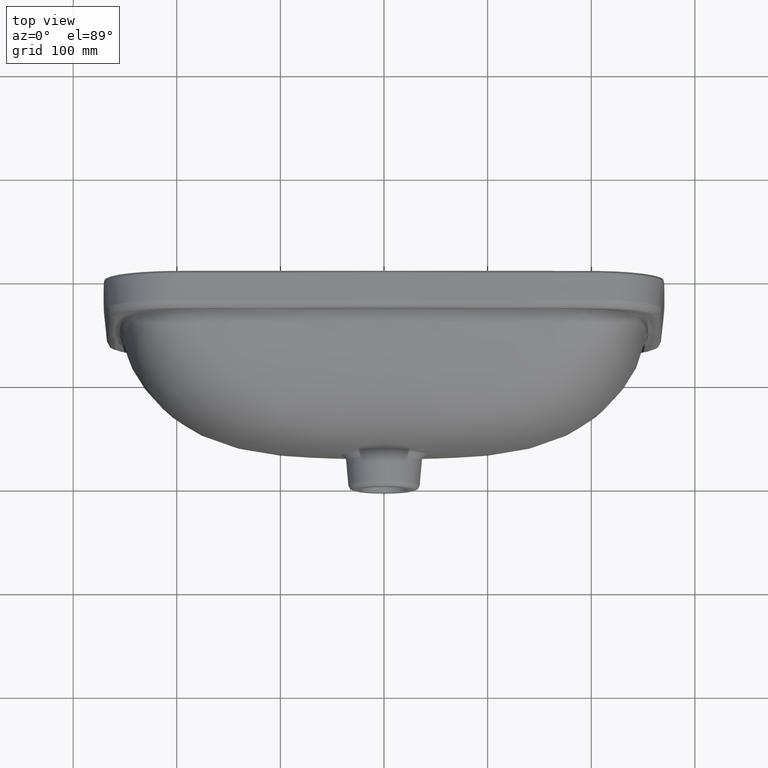
[diagram: clean part render]
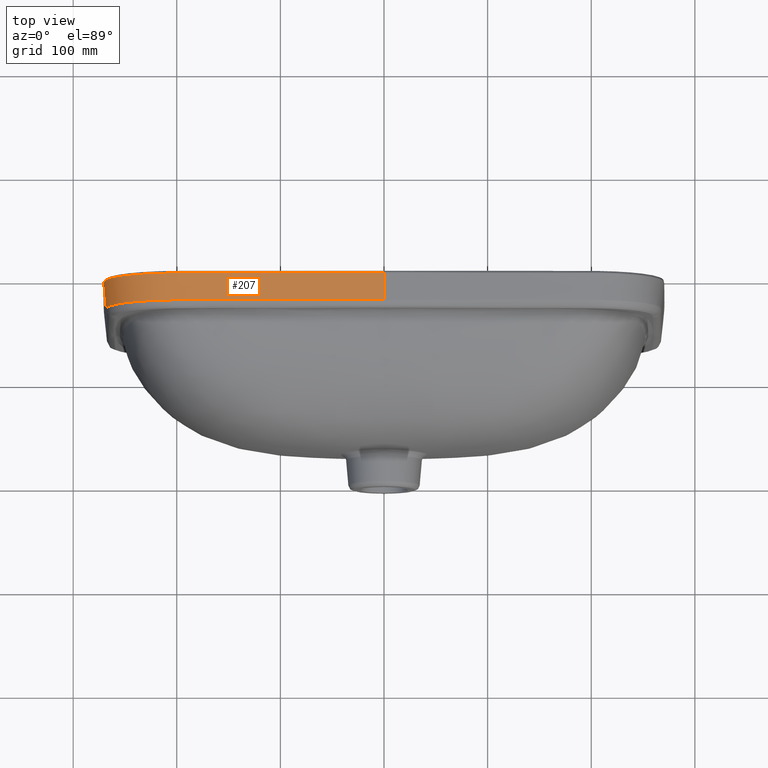
[diagram: same view with one face highlighted and labeled with its STEP entity id]
A machine part, top view. The second image highlights one B-rep face of the part: STEP entity #207.
In plain terms, the highlighted face is a freeform B-spline surface patch.
Its self-contained STEP definition (entity closure, byte-faithful):
#207=ADVANCED_FACE('',(#490),#365,.F.);
#365=B_SPLINE_SURFACE_WITH_KNOTS('',3,3,((#8297,#8298,#8299,#8300,#8301,
#8302,#8303,#8304,#8305,#8306,#8307,#8308,#8309,#8310,#8311,#8312,#8313,
#8314,#8315,#8316,#8317,#8318,#8319,#8320,#8321,#8322,#8323,#8324,#8325,
#8326,#8327,#8328,#8329,#8330,#8331,#8332,#8333,#8334,#8335,#8336),(#8337,
#8338,#8339,#8340,#8341,#8342,#8343,#8344,#8345,#8346,#8347,#8348,#8349,
#8350,#8351,#8352,#8353,#8354,#8355,#8356,#8357,#8358,#8359,#8360,#8361,
#8362,#8363,#8364,#8365,#8366,#8367,#8368,#8369,#8370,#8371,#8372,#8373,
#8374,#8375,#8376),(#8377,#8378,#8379,#8380,#8381,#8382,#8383,#8384,#8385,
#8386,#8387,#8388,#8389,#8390,#8391,#8392,#8393,#8394,#8395,#8396,#8397,
#8398,#8399,#8400,#8401,#8402,#8403,#8404,#8405,#8406,#8407,#8408,#8409,
#8410,#8411,#8412,#8413,#8414,#8415,#8416),(#8417,#8418,#8419,#8420,#8421,
#8422,#8423,#8424,#8425,#8426,#8427,#8428,#8429,#8430,#8431,#8432,#8433,
#8434,#8435,#8436,#8437,#8438,#8439,#8440,#8441,#8442,#8443,#8444,#8445,
#8446,#8447,#8448,#8449,#8450,#8451,#8452,#8453,#8454,#8455,#8456)),
 .UNSPECIFIED.,.F.,.F.,.F.,(4,4),(4,3,3,3,3,3,3,3,3,3,3,3,3,4),(0.,1.),
(0.,0.25,0.5,0.53125,0.5625,0.625,0.6875,0.75,0.8125,0.875,0.90625,0.9375,
0.96875,1.),.UNSPECIFIED.);
#490=FACE_OUTER_BOUND('',#657,.T.);
#657=EDGE_LOOP('',(#925,#926,#927,#928));
#925=ORIENTED_EDGE('',*,*,#1955,.F.);
#926=ORIENTED_EDGE('',*,*,#1963,.T.);
#927=ORIENTED_EDGE('',*,*,#1959,.F.);
#928=ORIENTED_EDGE('',*,*,#1964,.F.);
#1696=VERTEX_POINT('',#7865);
#1697=VERTEX_POINT('',#7870);
#1698=VERTEX_POINT('',#8144);
#1699=VERTEX_POINT('',#8145);
#1955=EDGE_CURVE('',#1696,#1697,#2361,.T.);
#1959=EDGE_CURVE('',#1698,#1699,#2365,.T.);
#1963=EDGE_CURVE('',#1696,#1699,#2369,.T.);
#1964=EDGE_CURVE('',#1697,#1698,#2370,.T.);
#2361=B_SPLINE_CURVE_WITH_KNOTS('',3,(#7866,#7867,#7868,#7869),
 .UNSPECIFIED.,.F.,.F.,(4,4),(0.,1.),.UNSPECIFIED.);
#2365=B_SPLINE_CURVE_WITH_KNOTS('',3,(#8140,#8141,#8142,#8143),
 .UNSPECIFIED.,.F.,.F.,(4,4),(0.,1.),.UNSPECIFIED.);
#2369=B_SPLINE_CURVE_WITH_KNOTS('',3,(#8203,#8204,#8205,#8206,#8207,#8208,
#8209,#8210,#8211,#8212,#8213,#8214,#8215,#8216,#8217,#8218,#8219,#8220,
#8221,#8222,#8223,#8224,#8225,#8226,#8227,#8228,#8229,#8230,#8231,#8232),
 .UNSPECIFIED.,.F.,.F.,(4,2,2,2,2,2,2,2,2,2,2,2,2,2,4),(0.,0.249999999999999,
0.499999999999998,0.562499999999998,0.624999999999998,0.656249999999998,
0.687499999999998,0.749999999999998,0.812499999999998,0.843749999999999,
0.874999999999999,0.906249999999999,0.937499999999999,0.96875,1.),
 .UNSPECIFIED.);
#2370=B_SPLINE_CURVE_WITH_KNOTS('',3,(#8233,#8234,#8235,#8236,#8237,#8238,
#8239,#8240,#8241,#8242,#8243,#8244,#8245,#8246,#8247,#8248,#8249,#8250,
#8251,#8252,#8253,#8254,#8255,#8256,#8257,#8258,#8259,#8260,#8261,#8262,
#8263,#8264,#8265,#8266,#8267,#8268,#8269,#8270,#8271,#8272,#8273,#8274,
#8275,#8276,#8277,#8278,#8279,#8280,#8281,#8282,#8283,#8284,#8285,#8286,
#8287,#8288,#8289,#8290,#8291,#8292,#8293,#8294,#8295,#8296),
 .UNSPECIFIED.,.F.,.F.,(4,3,3,3,3,3,3,3,3,3,3,3,3,3,3,3,3,3,3,3,3,4),(0.,
0.246997160821995,0.499998109828681,0.563248347080352,0.594873465706188,
0.626498584332024,0.658123702957859,0.673936262270777,0.689748821583695,
0.721373940209531,0.737186499522448,0.752999058835366,0.784624177461202,
0.80043673677412,0.816249296087038,0.847874414712873,0.879499533338709,
0.911124651964545,0.926937211277463,0.942749770590381,0.974374889216216,
1.),.UNSPECIFIED.);
#7865=CARTESIAN_POINT('',(3.01637813150877E-013,-319.313762731111,6.41281631383367));
#7866=CARTESIAN_POINT('',(2.93590461577157E-010,-319.313762731111,6.41281631383367));
#7867=CARTESIAN_POINT('',(1.43246872418371E-009,-318.412689245957,-2.17582511752859));
#7868=CARTESIAN_POINT('',(2.57167835584057E-009,-317.511615760804,-10.7644665488908));
#7869=CARTESIAN_POINT('',(3.71097424658921E-009,-316.61054227565,-19.353107980253));
#7870=CARTESIAN_POINT('',(3.02295954153754E-013,-316.610535070462,-19.3531079802644));
#8140=CARTESIAN_POINT('',(-267.719816795378,-233.127805359049,-19.3713386458312));
#8141=CARTESIAN_POINT('',(-268.641176070513,-233.134295514386,-10.7781325186596));
#8142=CARTESIAN_POINT('',(-269.562535350008,-233.140782092878,-2.18492639148782));
#8143=CARTESIAN_POINT('',(-270.483894633861,-233.147265096413,6.40827973568394));
#8144=CARTESIAN_POINT('',(-267.719816359036,-233.127870218683,-19.3713419192675));
#8145=CARTESIAN_POINT('',(-270.483895312362,-233.147264658594,6.40827966326583));
#8203=CARTESIAN_POINT('',(1.26141880548747E-010,-319.313762731111,6.41281631383366));
#8204=CARTESIAN_POINT('',(-27.1559396422217,-319.317672259858,6.41281630628867));
#8205=CARTESIAN_POINT('',(-54.3118792662001,-319.311239332041,6.41281630744485));
#8206=CARTESIAN_POINT('',(-108.62375736997,-319.29939382609,6.41281625779453));
#8207=CARTESIAN_POINT('',(-135.779999905028,-319.358500633458,6.41281245349922));
#8208=CARTESIAN_POINT('',(-169.724357686663,-319.158881716158,6.4128137645992));
#8209=CARTESIAN_POINT('',(-176.513073644107,-319.091326193264,6.41279966034016));
#8210=CARTESIAN_POINT('',(-190.091261562738,-319.090468673772,6.41279162443705));
#8211=CARTESIAN_POINT('',(-196.910927534692,-319.177203888599,6.41282953739133));
#8212=CARTESIAN_POINT('',(-207.002865528521,-318.317753129245,6.41280654817464));
#8213=CARTESIAN_POINT('',(-210.337736192204,-317.849037478725,6.41272887242605));
#8214=CARTESIAN_POINT('',(-216.926144675984,-316.402429598942,6.41281108507005));
#8215=CARTESIAN_POINT('',(-220.204827153488,-315.436281304396,6.41286416287603));
#8216=CARTESIAN_POINT('',(-229.759220617725,-311.893894342654,6.4129035255905));
#8217=CARTESIAN_POINT('',(-235.709798466045,-308.732362758566,6.41289957606016));
#8218=CARTESIAN_POINT('',(-246.738466501671,-300.743647146092,6.41227893125787));
#8219=CARTESIAN_POINT('',(-251.609535657163,-296.031691485642,6.41181705288326));
#8220=CARTESIAN_POINT('',(-257.839778328713,-288.005656638298,6.4108126583019));
#8221=CARTESIAN_POINT('',(-259.744477851492,-285.149921581619,6.41041976399154));
#8222=CARTESIAN_POINT('',(-263.072835671856,-279.272189158578,6.40969815740432));
#8223=CARTESIAN_POINT('',(-264.514536861603,-276.230935514194,6.40937621796485));
#8224=CARTESIAN_POINT('',(-266.938408097731,-269.93694540172,6.40893618797821));
#8225=CARTESIAN_POINT('',(-267.921896419856,-266.652305866681,6.40887117338743));
#8226=CARTESIAN_POINT('',(-269.367958541099,-260.022595919964,6.4086000463404));
#8227=CARTESIAN_POINT('',(-269.825674351308,-256.68748035786,6.40836907238737));
#8228=CARTESIAN_POINT('',(-270.321794380445,-249.985228829078,6.40819085966504));
#8229=CARTESIAN_POINT('',(-270.361334624249,-246.618179613991,6.40824683636099));
#8230=CARTESIAN_POINT('',(-270.415768761138,-239.88219908604,6.40827576706749));
#8231=CARTESIAN_POINT('',(-270.446750986142,-236.514496345511,6.40827680093305));
#8232=CARTESIAN_POINT('',(-270.48389599086,-233.147264220775,6.40827959081322));
#8233=CARTESIAN_POINT('',(-1.33920630661366E-009,-316.610527865275,-19.3531079802759));
#8234=CARTESIAN_POINT('',(-25.0665519947472,-316.613742806604,-19.3531079809178));
#8235=CARTESIAN_POINT('',(-50.1356832770767,-316.608946913614,-19.353107995484));
#8236=CARTESIAN_POINT('',(-75.2021648760247,-316.603466407076,-19.3531080831528));
#8237=CARTESIAN_POINT('',(-100.877940304726,-316.597852685239,-19.3531081729525));
#8238=CARTESIAN_POINT('',(-126.551316086873,-316.648508390862,-19.3531101094228));
#8239=CARTESIAN_POINT('',(-152.258421681246,-316.547546315169,-19.3531180643985));
#8240=CARTESIAN_POINT('',(-158.68519807984,-316.522305796246,-19.3531200531424));
#8241=CARTESIAN_POINT('',(-165.12620530497,-316.484074630542,-19.3531086232905));
#8242=CARTESIAN_POINT('',(-171.538003032689,-316.437158291575,-19.3531173768727));
#8243=CARTESIAN_POINT('',(-174.743901896549,-316.413700122092,-19.3531217536638));
#8244=CARTESIAN_POINT('',(-177.923516795684,-316.392434400566,-19.3531507846798));
#8245=CARTESIAN_POINT('',(-181.115661489831,-316.388636827188,-19.3531784130963));
#8246=CARTESIAN_POINT('',(-184.307806183979,-316.38483925381,-19.3532060415129));
#8247=CARTESIAN_POINT('',(-187.505030268227,-316.398624487446,-19.353133612162));
#8248=CARTESIAN_POINT('',(-190.78075668398,-316.380072698108,-19.3531423616045));
#8249=CARTESIAN_POINT('',(-194.056483099732,-316.361520908771,-19.3531511110471));
#8250=CARTESIAN_POINT('',(-197.399317070875,-316.305884322788,-19.3531262342727));
#8251=CARTESIAN_POINT('',(-200.831755002794,-316.09771527525,-19.353104279491));
#8252=CARTESIAN_POINT('',(-202.547973968754,-315.993630751481,-19.3530933021002));
#8253=CARTESIAN_POINT('',(-204.286882162174,-315.850649364523,-19.3530939889687));
#8254=CARTESIAN_POINT('',(-206.052657671966,-315.646739526262,-19.3531765241606));
#8255=CARTESIAN_POINT('',(-207.818433181759,-315.442829688,-19.3532590593524));
#8256=CARTESIAN_POINT('',(-209.633983639453,-315.169291111517,-19.3534119116611));
#8257=CARTESIAN_POINT('',(-211.427217146333,-314.820869520704,-19.3533591376913));
#8258=CARTESIAN_POINT('',(-215.013684160094,-314.124026339078,-19.3532535897516));
#8259=CARTESIAN_POINT('',(-218.571954606699,-313.137410468007,-19.3529358753609));
#8260=CARTESIAN_POINT('',(-222.098647992052,-311.850904563651,-19.3528687460406));
#8261=CARTESIAN_POINT('',(-223.861994684729,-311.207651611473,-19.3528351813804));
#8262=CARTESIAN_POINT('',(-225.626682151343,-310.484905745971,-19.3528017689041));
#8263=CARTESIAN_POINT('',(-227.349209192417,-309.699064266654,-19.3527885217338));
#8264=CARTESIAN_POINT('',(-229.071736233491,-308.913222787337,-19.3527752745634));
#8265=CARTESIAN_POINT('',(-230.755135955716,-308.063802045458,-19.3528147391841));
#8266=CARTESIAN_POINT('',(-232.400556941935,-307.151025552359,-19.3529329401341));
#8267=CARTESIAN_POINT('',(-235.691398914372,-305.325472566162,-19.3531693420343));
#8268=CARTESIAN_POINT('',(-238.831567359169,-303.248426178145,-19.3537418227556));
#8269=CARTESIAN_POINT('',(-241.816030806219,-300.899239787359,-19.3546008951661));
#8270=CARTESIAN_POINT('',(-243.308262529744,-299.724646591967,-19.3550304313714));
#8271=CARTESIAN_POINT('',(-244.768496603243,-298.47351071425,-19.3555089615618));
#8272=CARTESIAN_POINT('',(-246.16576909377,-297.170256904706,-19.3560353722972));
#8273=CARTESIAN_POINT('',(-247.563041584297,-295.867003095161,-19.3565617830326));
#8274=CARTESIAN_POINT('',(-248.896678105402,-294.514074278371,-19.3571466652029));
#8275=CARTESIAN_POINT('',(-250.168966490344,-293.112335676378,-19.3578049906367));
#8276=CARTESIAN_POINT('',(-252.713543260229,-290.308858472391,-19.3591216415041));
#8277=CARTESIAN_POINT('',(-255.015223160326,-287.310867153847,-19.3607546944985));
#8278=CARTESIAN_POINT('',(-257.068247351212,-284.109008499593,-19.3625060019756));
#8279=CARTESIAN_POINT('',(-259.121271542098,-280.907149845338,-19.3642573094528));
#8280=CARTESIAN_POINT('',(-260.930189350697,-277.47885154581,-19.3660269077434));
#8281=CARTESIAN_POINT('',(-262.407187370541,-273.962567993768,-19.3672435069341));
#8282=CARTESIAN_POINT('',(-263.884185390384,-270.446284441726,-19.3684601061248));
#8283=CARTESIAN_POINT('',(-265.047830825134,-266.802752629227,-19.3688426591944));
#8284=CARTESIAN_POINT('',(-265.879271247582,-263.072156829842,-19.3694628716043));
#8285=CARTESIAN_POINT('',(-266.294991458806,-261.20685893015,-19.3697729778093));
#8286=CARTESIAN_POINT('',(-266.630315597262,-259.304841917987,-19.3701967103745));
#8287=CARTESIAN_POINT('',(-266.881277483044,-257.405249072439,-19.3705934737651));
#8288=CARTESIAN_POINT('',(-267.132239368827,-255.505656226892,-19.3709902371557));
#8289=CARTESIAN_POINT('',(-267.299845272832,-253.62779288879,-19.3713476549483));
#8290=CARTESIAN_POINT('',(-267.405983358286,-251.773829619626,-19.3714340824219));
#8291=CARTESIAN_POINT('',(-267.618259529193,-248.065903081298,-19.3716069373689));
#8292=CARTESIAN_POINT('',(-267.612661903198,-244.633681692583,-19.3714164031581));
#8293=CARTESIAN_POINT('',(-267.639317828288,-241.285103749471,-19.3713997316495));
#8294=CARTESIAN_POINT('',(-267.660916515129,-238.571827578855,-19.3713862231071));
#8295=CARTESIAN_POINT('',(-267.689727024042,-235.852730578465,-19.3713592726623));
#8296=CARTESIAN_POINT('',(-267.71981550351,-233.12787558271,-19.3713473136575));
#8297=CARTESIAN_POINT('',(5.33073763058124E-009,-319.563107649455,8.78946386997123));
#8298=CARTESIAN_POINT('',(-27.7748102609016,-319.567106276569,8.78946388239105));
#8299=CARTESIAN_POINT('',(-55.5498078290475,-319.560285633631,8.78946388130349));
#8300=CARTESIAN_POINT('',(-83.3253961712949,-319.554257332772,8.78946392050273));
#8301=CARTESIAN_POINT('',(-111.100984513542,-319.548229031913,8.78946395970198));
#8302=CARTESIAN_POINT('',(-138.878244814732,-319.609447407508,8.78947383998363));
#8303=CARTESIAN_POINT('',(-166.634678839212,-319.42500541026,8.78946748193728));
#8304=CARTESIAN_POINT('',(-170.104233092272,-319.401950160604,8.78946668718149));
#8305=CARTESIAN_POINT('',(-173.57576457832,-319.37215861178,8.78946700487058));
#8306=CARTESIAN_POINT('',(-177.053411737861,-319.353677961815,8.78947561194309));
#8307=CARTESIAN_POINT('',(-180.531058897403,-319.335197311851,8.78948421901561));
#8308=CARTESIAN_POINT('',(-184.020374125037,-319.34141142397,8.78949944519492));
#8309=CARTESIAN_POINT('',(-187.481531794946,-319.340784135225,8.789482815869));
#8310=CARTESIAN_POINT('',(-194.403847134764,-319.339529557734,8.78944955721715));
#8311=CARTESIAN_POINT('',(-201.279881275429,-319.282561148286,8.78937168459482));
#8312=CARTESIAN_POINT('',(-207.920780466335,-318.389239407517,8.78940025265017));
#8313=CARTESIAN_POINT('',(-214.561679657242,-317.495917666747,8.78942882070552));
#8314=CARTESIAN_POINT('',(-221.04468875188,-315.654718606031,8.78874108989334));
#8315=CARTESIAN_POINT('',(-227.184848060476,-313.001167681486,8.78824331802135));
#8316=CARTESIAN_POINT('',(-233.325007369073,-310.347616756941,8.78774554614936));
#8317=CARTESIAN_POINT('',(-239.0980556443,-306.885316390256,8.78741119328366));
#8318=CARTESIAN_POINT('',(-244.273479810901,-302.724193575221,8.78735438232457));
#8319=CARTESIAN_POINT('',(-249.448903977502,-298.563070760187,8.78729757136549));
#8320=CARTESIAN_POINT('',(-254.028047707825,-293.689190218226,8.78742564821263));
#8321=CARTESIAN_POINT('',(-257.843726236792,-288.296857003097,8.78787937309899));
#8322=CARTESIAN_POINT('',(-261.659404765758,-282.904523787969,8.78833309798534));
#8323=CARTESIAN_POINT('',(-264.708461294348,-276.99315495777,8.78899095000924));
#8324=CARTESIAN_POINT('',(-266.832748415924,-270.784764190297,8.78907314426772));
#8325=CARTESIAN_POINT('',(-267.894891976712,-267.68056880656,8.78911424139695));
#8326=CARTESIAN_POINT('',(-268.722552954046,-264.501355075913,8.78902611541478));
#8327=CARTESIAN_POINT('',(-269.320663237477,-261.275159404545,8.7891454939781));
#8328=CARTESIAN_POINT('',(-269.918773520907,-258.048963733177,8.78926487254144));
#8329=CARTESIAN_POINT('',(-270.273458498535,-254.794573501141,8.78949862634775));
#8330=CARTESIAN_POINT('',(-270.446100293426,-251.485520608815,8.78953054769176));
#8331=CARTESIAN_POINT('',(-270.618742088318,-248.176467716489,8.78956246903577));
#8332=CARTESIAN_POINT('',(-270.631272803235,-244.809453487077,8.7894928534869));
#8333=CARTESIAN_POINT('',(-270.658102601126,-241.404781426242,8.78948714699948));
#8334=CARTESIAN_POINT('',(-270.684932399018,-238.000109365406,8.78948144051207));
#8335=CARTESIAN_POINT('',(-270.723003847054,-234.600451492098,8.7894674164449));
#8336=CARTESIAN_POINT('',(-270.760793273167,-231.204044039308,8.78946585551153));
#8337=CARTESIAN_POINT('',(4.07858155563956E-009,-318.572368213649,-0.653834491638538));
#8338=CARTESIAN_POINT('',(-27.7747193211169,-318.576366827672,-0.653834479218692));
#8339=CARTESIAN_POINT('',(-55.5496603833154,-318.569546193957,-0.653834480307003));
#8340=CARTESIAN_POINT('',(-83.3244841617772,-318.563517923861,-0.653834441105976));
#8341=CARTESIAN_POINT('',(-111.099307940239,-318.557489653766,-0.653834401904948));
#8342=CARTESIAN_POINT('',(-138.873170828056,-318.618717634763,-0.653824522086162));
#8343=CARTESIAN_POINT('',(-166.632223582174,-318.434248204137,-0.653830880185584));
#8344=CARTESIAN_POINT('',(-170.102105176439,-318.411189525309,-0.65383167494801));
#8345=CARTESIAN_POINT('',(-173.574321444136,-318.381395538575,-0.653831365022573));
#8346=CARTESIAN_POINT('',(-177.050977694825,-318.362900284774,-0.653822755317161));
#8347=CARTESIAN_POINT('',(-180.527633945514,-318.344405030973,-0.653814145611748));
#8348=CARTESIAN_POINT('',(-184.014609017498,-318.35051236423,-0.653798808023508));
#8349=CARTESIAN_POINT('',(-187.468520045815,-318.349988019117,-0.653815667406986));
#8350=CARTESIAN_POINT('',(-194.376342102449,-318.34893932889,-0.653849386173942));
#8351=CARTESIAN_POINT('',(-201.204174015034,-318.291924318122,-0.653928002994182));
#8352=CARTESIAN_POINT('',(-207.771077157886,-317.409519458194,-0.653898671940134));
#8353=CARTESIAN_POINT('',(-214.337980300739,-316.527114598266,-0.653869340886087));
#8354=CARTESIAN_POINT('',(-220.732234029552,-314.710259325798,-0.654556946250927));
#8355=CARTESIAN_POINT('',(-226.787969061818,-312.093773501094,-0.655054754107229));
#8356=CARTESIAN_POINT('',(-232.843704094085,-309.477287676391,-0.65555256196353));
#8357=CARTESIAN_POINT('',(-238.534257772419,-306.064613744249,-0.655887139704555));
#8358=CARTESIAN_POINT('',(-243.635057956358,-301.963700755985,-0.65594397859828));
#8359=CARTESIAN_POINT('',(-248.735858140298,-297.862787767722,-0.656000817492001));
#8360=CARTESIAN_POINT('',(-253.248271385012,-293.060170768235,-0.655872658645359));
#8361=CARTESIAN_POINT('',(-257.009149096202,-287.74454968543,-0.655418771322581));
#8362=CARTESIAN_POINT('',(-260.770026807392,-282.428928602624,-0.654964883999805));
#8363=CARTESIAN_POINT('',(-263.777103211724,-276.597939766196,-0.654307426471856));
#8364=CARTESIAN_POINT('',(-265.872495199787,-270.474413325588,-0.65422524364786));
#8365=CARTESIAN_POINT('',(-266.920191193819,-267.412650105283,-0.654184152235865));
#8366=CARTESIAN_POINT('',(-267.736382512921,-264.278801246738,-0.654272107177519));
#8367=CARTESIAN_POINT('',(-268.326135204944,-261.094564315398,-0.654153109603135));
#8368=CARTESIAN_POINT('',(-268.915887896966,-257.910327384057,-0.654034112028751));
#8369=CARTESIAN_POINT('',(-269.265624625076,-254.692904261947,-0.653802369274753));
#8370=CARTESIAN_POINT('',(-269.435978815302,-251.410313289921,-0.653769995379745));
#8371=CARTESIAN_POINT('',(-269.606333005527,-248.127722317895,-0.653737621484738));
#8372=CARTESIAN_POINT('',(-269.618853065141,-244.77825243389,-0.653805393757241));
#8373=CARTESIAN_POINT('',(-269.645649330058,-241.383863714709,-0.653811156558751));
#8374=CARTESIAN_POINT('',(-269.672445594975,-237.989474995529,-0.653816919360261));
#8375=CARTESIAN_POINT('',(-269.710506854651,-234.592506877738,-0.65383094985185));
#8376=CARTESIAN_POINT('',(-269.748292248489,-231.196924153025,-0.6538325078442));
#8377=CARTESIAN_POINT('',(2.82599754873413E-009,-317.581628777844,-10.0971328532483));
#8378=CARTESIAN_POINT('',(-27.7746283813331,-317.585627378774,-10.0971328408284));
#8379=CARTESIAN_POINT('',(-55.5495129375844,-317.578806754284,-10.0971328419175));
#8380=CARTESIAN_POINT('',(-83.3235721522586,-317.572778514951,-10.0971328027146));
#8381=CARTESIAN_POINT('',(-111.097631366933,-317.566750275619,-10.0971327635118));
#8382=CARTESIAN_POINT('',(-138.868096841723,-317.627987862022,-10.0971228841563));
#8383=CARTESIAN_POINT('',(-166.629768325406,-317.443490998014,-10.0971292423083));
#8384=CARTESIAN_POINT('',(-170.099977260866,-317.420428890013,-10.0971300370773));
#8385=CARTESIAN_POINT('',(-173.57287832002,-317.390632465317,-10.0971297349134));
#8386=CARTESIAN_POINT('',(-177.048543638913,-317.372122607929,-10.0971211225984));
#8387=CARTESIAN_POINT('',(-180.524208957806,-317.353612750542,-10.0971125102834));
#8388=CARTESIAN_POINT('',(-184.008843350575,-317.359613298963,-10.0970970591962));
#8389=CARTESIAN_POINT('',(-187.455508793954,-317.35919190623,-10.097114151888));
#8390=CARTESIAN_POINT('',(-194.348839680713,-317.358349120764,-10.0971483372717));
#8391=CARTESIAN_POINT('',(-201.128478130905,-317.301287124833,-10.0972277423191));
#8392=CARTESIAN_POINT('',(-207.621385957814,-316.429797958113,-10.0971976247465));
#8393=CARTESIAN_POINT('',(-214.114293784723,-315.558308791393,-10.0971675071739));
#8394=CARTESIAN_POINT('',(-220.419786708975,-313.765797677305,-10.0978549724764));
#8395=CARTESIAN_POINT('',(-226.391097742508,-311.18637603007,-10.0983528177811));
#8396=CARTESIAN_POINT('',(-232.36240877604,-308.606954382836,-10.0988506630858));
#8397=CARTESIAN_POINT('',(-237.970463013686,-305.24390891717,-10.0991854720372));
#8398=CARTESIAN_POINT('',(-242.996638186475,-301.203206263646,-10.0992423397833));
#8399=CARTESIAN_POINT('',(-248.022813359265,-297.162503610121,-10.0992992075294));
#8400=CARTESIAN_POINT('',(-252.468492587134,-292.431153734022,-10.0991709630609));
#8401=CARTESIAN_POINT('',(-256.174568087936,-287.192247861897,-10.0987169087106));
#8402=CARTESIAN_POINT('',(-259.880643588739,-281.953341989772,-10.0982628543604));
#8403=CARTESIAN_POINT('',(-262.845744688779,-276.202726463537,-10.0976058029736));
#8404=CARTESIAN_POINT('',(-264.912242641316,-270.164060543228,-10.0975236327931));
#8405=CARTESIAN_POINT('',(-265.945491617585,-267.144727583074,-10.0974825477028));
#8406=CARTESIAN_POINT('',(-266.750210417195,-264.056251799775,-10.0975703173525));
#8407=CARTESIAN_POINT('',(-267.331604332991,-260.913985142168,-10.0974517358946));
#8408=CARTESIAN_POINT('',(-267.912998248787,-257.771718484562,-10.0973331544367));
#8409=CARTESIAN_POINT('',(-268.257789353926,-254.591261019419,-10.0971034995273));
#8410=CARTESIAN_POINT('',(-268.425856766482,-251.33512207523,-10.0970706241515));
#8411=CARTESIAN_POINT('',(-268.593924179037,-248.078983131042,-10.0970377487757));
#8412=CARTESIAN_POINT('',(-268.606433331042,-244.74705090008,-10.0971036397983));
#8413=CARTESIAN_POINT('',(-268.633196062249,-241.36294568804,-10.097109459679));
#8414=CARTESIAN_POINT('',(-268.659958793456,-237.978840476,-10.0971152795597));
#8415=CARTESIAN_POINT('',(-268.698009862423,-234.584562251396,-10.0971293161587));
#8416=CARTESIAN_POINT('',(-268.73579122385,-231.189804264021,-10.097130871202));
#8417=CARTESIAN_POINT('',(1.57331141556313E-009,-316.590889342038,-19.540431214858));
#8418=CARTESIAN_POINT('',(-27.7745374415491,-316.594887929876,-19.5404312024381));
#8419=CARTESIAN_POINT('',(-55.5493654918536,-316.58806731461,-19.5404312035279));
#8420=CARTESIAN_POINT('',(-83.322660142739,-316.58203910604,-19.5404311643232));
#8421=CARTESIAN_POINT('',(-111.095954793625,-316.576010897471,-19.5404311251186));
#8422=CARTESIAN_POINT('',(-138.863022855737,-316.637258089281,-19.5404212462268));
#8423=CARTESIAN_POINT('',(-166.627313068909,-316.452733791889,-19.5404276044309));
#8424=CARTESIAN_POINT('',(-170.097849345555,-316.429668254715,-19.5404283992064));
#8425=CARTESIAN_POINT('',(-173.571435206037,-316.399869392004,-19.5404281048018));
#8426=CARTESIAN_POINT('',(-177.046109570094,-316.381344931281,-19.5404194899008));
#8427=CARTESIAN_POINT('',(-180.52078393415,-316.362820470559,-19.5404108749998));
#8428=CARTESIAN_POINT('',(-184.003077108557,-316.368714227844,-19.5403953082481));
#8429=CARTESIAN_POINT('',(-187.442498049023,-316.368395796694,-19.540412637606));
#8430=CARTESIAN_POINT('',(-194.321339929956,-316.367758934393,-19.5404472963218));
#8431=CARTESIAN_POINT('',(-201.052794593506,-316.310649568799,-19.5405275394526));
#8432=CARTESIAN_POINT('',(-207.471708146168,-315.450074752551,-19.5404966099067));
#8433=CARTESIAN_POINT('',(-213.89062169883,-314.589499936303,-19.5404656803609));
#8434=CARTESIAN_POINT('',(-220.107347749786,-312.821333359861,-19.5411529878914));
#8435=CARTESIAN_POINT('',(-225.994235127416,-310.278974833228,-19.541650872333));
#8436=CARTESIAN_POINT('',(-231.881122505047,-307.736616306594,-19.5421487567746));
#8437=CARTESIAN_POINT('',(-237.406671802579,-304.423201605659,-19.5424838037063));
#8438=CARTESIAN_POINT('',(-242.358220793527,-300.4427098641,-19.542540701313));
#8439=CARTESIAN_POINT('',(-247.309769784476,-296.46221812254,-19.5425975989197));
#8440=CARTESIAN_POINT('',(-251.688710962595,-291.802139463,-19.5424692646777));
#8441=CARTESIAN_POINT('',(-255.339982679512,-286.639952293042,-19.5420150383893));
#8442=CARTESIAN_POINT('',(-258.99125439643,-281.477765123085,-19.5415608121008));
#8443=CARTESIAN_POINT('',(-261.914385665741,-275.807515301722,-19.5409041794149));
#8444=CARTESIAN_POINT('',(-263.951990827341,-269.853705590735,-19.5408220233582));
#8445=CARTESIAN_POINT('',(-264.970793408142,-266.876800735242,-19.5407809453298));
#8446=CARTESIAN_POINT('',(-265.764036426297,-263.833707434776,-19.5408685128766));
#8447=CARTESIAN_POINT('',(-266.33707028453,-260.73342386075,-19.5407503895923));
#8448=CARTESIAN_POINT('',(-266.910104142763,-257.633140286724,-19.5406322663079));
#8449=CARTESIAN_POINT('',(-267.249952614366,-254.489646026115,-19.5404047816901));
#8450=CARTESIAN_POINT('',(-267.415734125959,-251.259948182148,-19.5403713478395));
#8451=CARTESIAN_POINT('',(-267.581515637552,-248.030250338182,-19.5403379139888));
#8452=CARTESIAN_POINT('',(-267.594013601124,-244.71584886783,-19.5404018846007));
#8453=CARTESIAN_POINT('',(-267.620742797808,-241.342027337457,-19.5404077623516));
#8454=CARTESIAN_POINT('',(-267.647471994491,-237.968205807083,-19.5404136401025));
#8455=CARTESIAN_POINT('',(-267.685512870369,-234.576617613036,-19.5404276824757));
#8456=CARTESIAN_POINT('',(-267.72329019925,-231.18268437229,-19.540429234562));